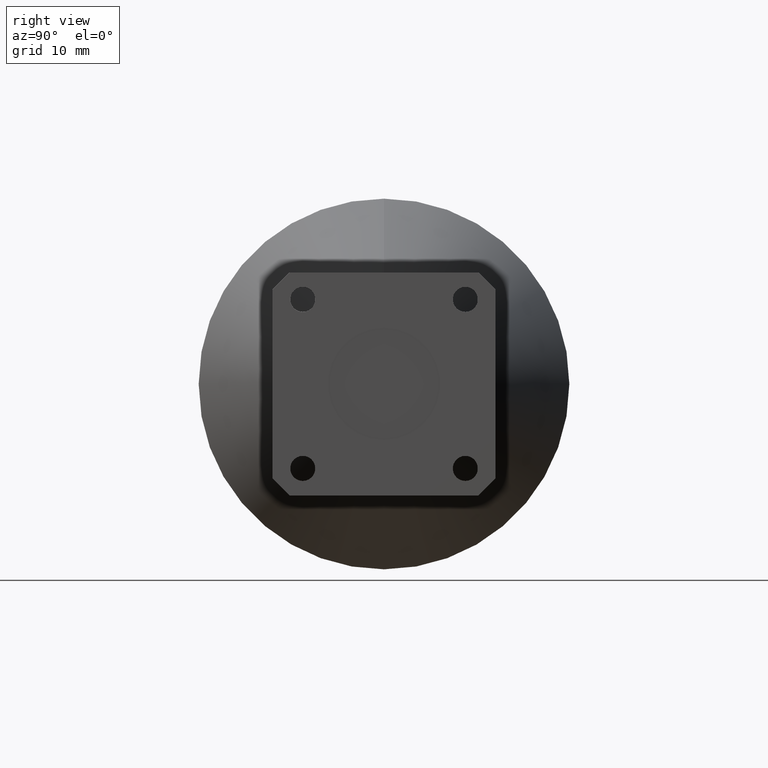
[diagram: clean part render]
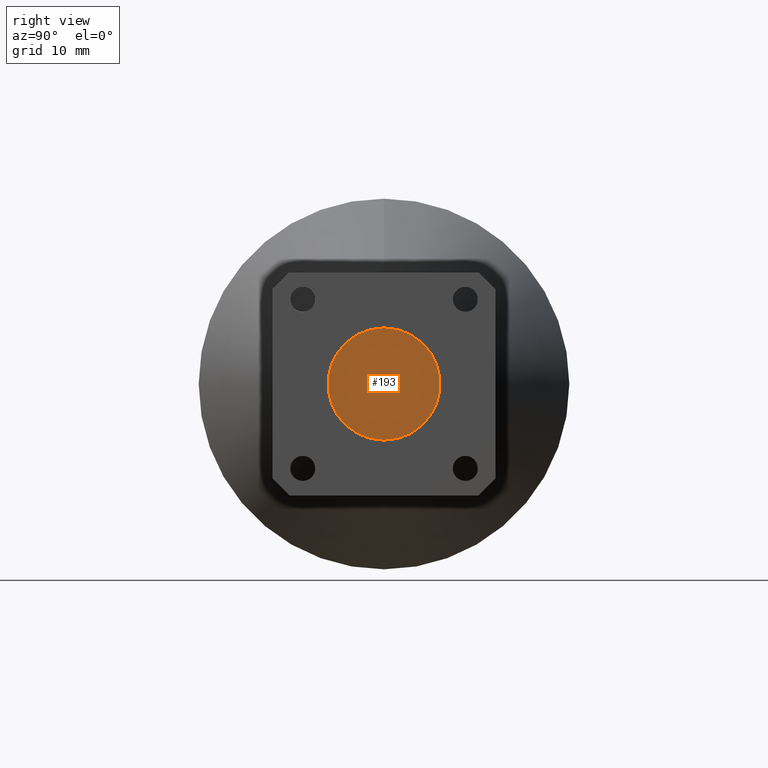
[diagram: same view with one face highlighted and labeled with its STEP entity id]
A machine part, right view. The second image highlights one B-rep face of the part: STEP entity #193.
In plain terms, the highlighted planar face has unit normal (-1, 0, -0).
Its self-contained STEP definition (entity closure, byte-faithful):
#20 = DIRECTION ( 'NONE',  ( 0.0000000000000000000, 0.0000000000000000000, 1.000000000000000000 ) ) ;
#78 = AXIS2_PLACEMENT_3D ( 'NONE', #690, #693, #415 ) ;
#80 = AXIS2_PLACEMENT_3D ( 'NONE', #367, #442, #20 ) ;
#94 = AXIS2_PLACEMENT_3D ( 'NONE', #171, #248, #235 ) ;
#171 = CARTESIAN_POINT ( 'NONE',  ( 2.990000000000000200, 0.0000000000000000000, 0.0000000000000000000 ) ) ;
#193 = ADVANCED_FACE ( 'NONE', ( #453 ), #766, .F. ) ;
#235 = DIRECTION ( 'NONE',  ( 0.0000000000000000000, 0.0000000000000000000, 1.000000000000000000 ) ) ;
#248 = DIRECTION ( 'NONE',  ( 1.000000000000000000, 0.0000000000000000000, 0.0000000000000000000 ) ) ;
#367 = CARTESIAN_POINT ( 'NONE',  ( 2.990000000000000200, 0.0000000000000000000, 0.0000000000000000000 ) ) ;
#415 = DIRECTION ( 'NONE',  ( -0.0000000000000000000, 0.0000000000000000000, 1.000000000000000000 ) ) ;
#442 = DIRECTION ( 'NONE',  ( 1.000000000000000000, 0.0000000000000000000, 0.0000000000000000000 ) ) ;
#453 = FACE_OUTER_BOUND ( 'NONE', #701, .T. ) ;
#485 = EDGE_CURVE ( 'NONE', #606, #703, #519, .T. ) ;
#519 = CIRCLE ( 'NONE', #94, 0.3300000000000000200 ) ;
#545 = CARTESIAN_POINT ( 'NONE',  ( 2.990000000000000200, 0.0000000000000000000, 0.3300000000000000200 ) ) ;
#558 = ORIENTED_EDGE ( 'NONE', *, *, #866, .T. ) ;
#565 = CARTESIAN_POINT ( 'NONE',  ( 2.990000000000000200, 4.041334437186265900E-017, -0.3300000000000000200 ) ) ;
#606 = VERTEX_POINT ( 'NONE', #545 ) ;
#690 = CARTESIAN_POINT ( 'NONE',  ( 2.990000000000000200, 0.3440557270617016200, 0.0000000000000000000 ) ) ;
#693 = DIRECTION ( 'NONE',  ( -1.000000000000000000, 0.0000000000000000000, -0.0000000000000000000 ) ) ;
#701 = EDGE_LOOP ( 'NONE', ( #704, #558 ) ) ;
#703 = VERTEX_POINT ( 'NONE', #565 ) ;
#704 = ORIENTED_EDGE ( 'NONE', *, *, #485, .T. ) ;
#741 = CIRCLE ( 'NONE', #80, 0.3300000000000000200 ) ;
#766 = PLANE ( 'NONE',  #78 ) ;
#866 = EDGE_CURVE ( 'NONE', #703, #606, #741, .T. ) ;